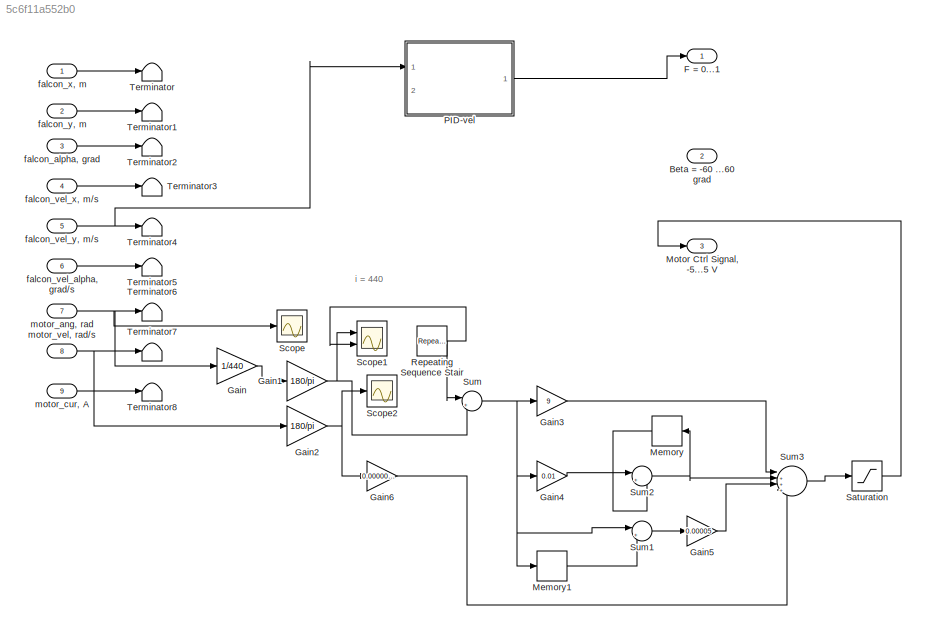
MODEL slx_5c6f11a552b0
KIND model
CONFIG AbsTol = auto
CONFIG EnableMultiTasking = on
CONFIG FixedStep = auto
CONFIG MaxStep = auto
CONFIG MinStep = auto
CONFIG RelTol = 1e-3
CONFIG SampleTimeConstraint = Unconstrained
CONFIG Solver = VariableStepAuto
CONFIG SolverName = VariableStepAuto
CONFIG StartTime = 0.0
CONFIG StopTime = 100
BLOCK [Outport] Beta = -60 ...60 grad
  OutDataTypeStr = double
  Port = 2
  PortDimensions = 1
  SamplingMode = Sample based
  SignalType = real
  VectorParamsAs1DForOutWhenUnconnected = off
BLOCK [Outport] F = 0...1
  OutDataTypeStr = double
  PortDimensions = 1
  SampleTime = [0,1]
  SamplingMode = Sample based
  SignalType = real
  VectorParamsAs1DForOutWhenUnconnected = off
BLOCK [Gain] Gain
  Gain = 1/440
BLOCK [Gain] Gain1
  Gain = 180/pi
BLOCK [Gain] Gain2
  Gain = 180/pi
BLOCK [Gain] Gain3
  Gain = 9
BLOCK [Gain] Gain4
  Gain = 0.01
BLOCK [Gain] Gain5
  Gain = 0.00005
BLOCK [Gain] Gain6
  Gain = 0.0000001
BLOCK [Memory] Memory
BLOCK [Memory] Memory1
BLOCK [Outport] Motor Ctrl Signal, -5...5 V
  OutDataTypeStr = double
  Port = 3
  PortDimensions = 1
  SampleTime = [0,1]
  SamplingMode = Sample based
  SignalType = real
  VectorParamsAs1DForOutWhenUnconnected = off
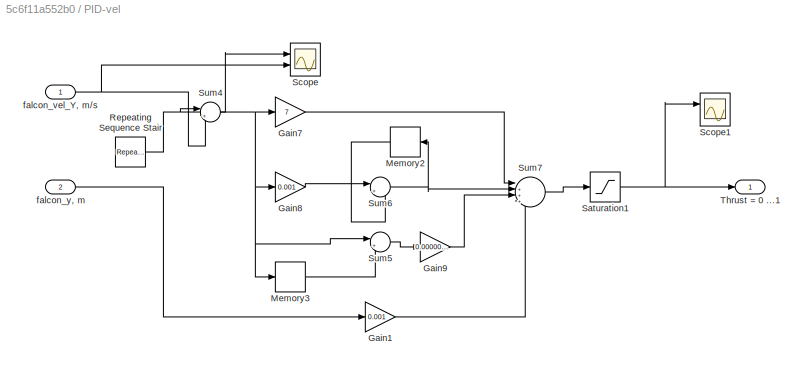
BLOCK [SubSystem] PID-vel
  Ports = [2, 1]
  RequestExecContextInheritance = off
BLOCK [Gain] PID-vel/Gain1
  Gain = 0.001
BLOCK [Gain] PID-vel/Gain7
  Gain = 7
BLOCK [Gain] PID-vel/Gain8
  Gain = 0.001
BLOCK [Gain] PID-vel/Gain9
  Gain = 0.0000005
BLOCK [Memory] PID-vel/Memory2
BLOCK [Memory] PID-vel/Memory3
BLOCK [Reference] PID-vel/Repeating Sequence Stair  REF=simulink/Sources/Repeating
Sequence
Stair
  Ports = [0, 1]
  SourceBlock = simulink/Sources/Repeating\nSequence\nStair
  SourceProductBaseCode = SL
  SourceType = Repeating Sequence Stair
BLOCK [Saturate] PID-vel/Saturation1
  LowerLimit = 0
  UpperLimit = 1
BLOCK [Scope] PID-vel/Scope
  Floating = off
  NumInputPorts = 2
  Ports = [2]
  ScopeSpecificationString = Simulink.scopes.TimeScopeBlockCfg('CurrentConfiguration', extmgr.ConfigurationSet(extmgr.Configuration('Core','General UI',true),extmgr.Configuration('Core','Source UI',true),extmgr.Configuration('Sources','WiredSimulink',true,'DataLoggingVariableName','ScopeData2'),extmgr.Configuration('Visuals','Time Domain',true,'SerializedDisplays',{struct('MinYLimReal','-23.73659','MaxYLimReal','2.6374','YLab...<+1460ch>
BLOCK [Scope] PID-vel/Scope1
  Floating = off
  NumInputPorts = 2
  Ports = [2]
  ScopeSpecificationString = Simulink.scopes.TimeScopeBlockCfg('CurrentConfiguration', extmgr.ConfigurationSet(extmgr.Configuration('Core','General UI',true),extmgr.Configuration('Core','Source UI',true),extmgr.Configuration('Sources','WiredSimulink',true,'DataLoggingVariableName','ScopeData3'),extmgr.Configuration('Visuals','Time Domain',true,'SerializedDisplays',{struct('MinYLimReal','-0.125','MaxYLimReal','1.125','YLabelRe...<+1399ch>
BLOCK [Sum] PID-vel/Sum4
  Inputs = |+-
  Ports = [2, 1]
BLOCK [Sum] PID-vel/Sum5
  Inputs = |+-
  Ports = [2, 1]
BLOCK [Sum] PID-vel/Sum6
  Inputs = |++
  NameLocation = top
  Ports = [2, 1]
BLOCK [Sum] PID-vel/Sum7
  Inputs = |+++-
  NameLocation = top
  Ports = [4, 1]
BLOCK [Outport] PID-vel/Thrust = 0 ...1
BLOCK [Inport] PID-vel/falcon_vel_Y, m//s
BLOCK [Inport] PID-vel/falcon_y, m
  Port = 2
BLOCK [Reference] Repeating Sequence Stair  REF=simulink/Sources/Repeating
Sequence
Stair
  Ports = [0, 1]
  SourceBlock = simulink/Sources/Repeating\nSequence\nStair
  SourceProductBaseCode = SL
  SourceType = Repeating Sequence Stair
BLOCK [Saturate] Saturation
  LowerLimit = -5
  UpperLimit = 5
BLOCK [Scope] Scope
  Floating = off
  NumInputPorts = 1
  Ports = [1]
  ScopeSpecificationString = Simulink.scopes.TimeScopeBlockCfg('CurrentConfiguration', extmgr.ConfigurationSet(extmgr.Configuration('Core','General UI',true),extmgr.Configuration('Core','Source UI',true),extmgr.Configuration('Sources','WiredSimulink',true,'DataLoggingVariableName','ScopeData1'),extmgr.Configuration('Visuals','Time Domain',true,'SerializedDisplays',{struct('MinYLimReal','-172.7876','MaxYLimReal','1555.08844','...<+1463ch>
BLOCK [Scope] Scope1
  Floating = off
  NumInputPorts = 2
  Ports = [2]
  ScopeSpecificationString = Simulink.scopes.TimeScopeBlockCfg('CurrentConfiguration', extmgr.ConfigurationSet(extmgr.Configuration('Core','General UI',true),extmgr.Configuration('Core','Source UI',true),extmgr.Configuration('Sources','WiredSimulink',true,'DataLoggingVariableName','ScopeData4'),extmgr.Configuration('Visuals','Time Domain',true,'SerializedDisplays',{struct('MinYLimReal','0','MaxYLimReal','500','YLabelReal','',...<+1451ch>
BLOCK [Scope] Scope2
  Floating = off
  NumInputPorts = 1
  Ports = [1]
  ScopeSpecificationString = Simulink.scopes.TimeScopeBlockCfg('CurrentConfiguration', extmgr.ConfigurationSet(extmgr.Configuration('Core','General UI',true),extmgr.Configuration('Core','Source UI',true),extmgr.Configuration('Sources','WiredSimulink',true),extmgr.Configuration('Visuals','Time Domain',true,'SerializedDisplays',{struct('MinYLimReal','-1200','MaxYLimReal','10000','YLabelReal','','MinYLimMag',' 0.00000','MaxYLimM...<+1396ch>
BLOCK [Sum] Sum
  Inputs = |+-
  Ports = [2, 1]
BLOCK [Sum] Sum1
  Inputs = |+-
  Ports = [2, 1]
BLOCK [Sum] Sum2
  Inputs = |++
  NameLocation = top
  Ports = [2, 1]
BLOCK [Sum] Sum3
  Inputs = |+++-
  NameLocation = top
  Ports = [4, 1]
BLOCK [Terminator] Terminator
BLOCK [Terminator] Terminator1
BLOCK [Terminator] Terminator2
BLOCK [Terminator] Terminator3
BLOCK [Terminator] Terminator4
BLOCK [Terminator] Terminator5
BLOCK [Terminator] Terminator6
BLOCK [Terminator] Terminator7
BLOCK [Terminator] Terminator8
BLOCK [Inport] falcon_alpha, grad
  OutDataTypeStr = double
  Port = 3
  PortDimensions = 1
  SampleTime = [0.01,0]
  SamplingMode = Sample based
  SignalType = real
BLOCK [Inport] falcon_vel_alpha, grad//s
  OutDataTypeStr = double
  Port = 6
  PortDimensions = 1
  SampleTime = [0.01,0]
  SamplingMode = Sample based
  SignalType = real
BLOCK [Inport] falcon_vel_x, m//s
  OutDataTypeStr = double
  Port = 4
  PortDimensions = 1
  SampleTime = [0.01,0]
  SamplingMode = Sample based
  SignalType = real
BLOCK [Inport] falcon_vel_y, m//s
  OutDataTypeStr = double
  Port = 5
  PortDimensions = 1
  SampleTime = [0.01,0]
  SamplingMode = Sample based
  SignalType = real
BLOCK [Inport] falcon_x, m
  OutDataTypeStr = double
  PortDimensions = 1
  SampleTime = [0.01,0]
  SamplingMode = Sample based
  SignalType = real
BLOCK [Inport] falcon_y, m
  OutDataTypeStr = double
  Port = 2
  PortDimensions = 1
  SampleTime = [0.01,0]
  SamplingMode = Sample based
  SignalType = real
BLOCK [Inport] motor_ang, rad
  OutDataTypeStr = double
  Port = 7
  PortDimensions = 1
  SampleTime = [0.01,0]
  SamplingMode = Sample based
  SignalType = real
BLOCK [Inport] motor_cur, A
  OutDataTypeStr = double
  Port = 9
  PortDimensions = 1
  SampleTime = [0.01,0]
  SamplingMode = Sample based
  SignalType = real
BLOCK [Inport] motor_vel, rad//s
  OutDataTypeStr = double
  Port = 8
  PortDimensions = 1
  SampleTime = [0.01,0]
  SamplingMode = Sample based
  SignalType = real
ANNOTATION (root): i = 440
NET Gain1:1 -> Scope1:1, Sum:2
NET Gain2:1 -> Gain6:1, Scope2:1
LINE Gain3:1 -> Sum3:1
LINE Gain4:1 -> Sum2:1
LINE Gain5:1 -> Sum3:3
LINE Gain6:1 -> Sum3:4
LINE Gain:1 -> Gain1:1
LINE Memory1:1 -> Sum1:2
LINE Memory:1 -> Sum2:2
LINE PID-vel/Gain1:1 -> PID-vel/Sum7:4
LINE PID-vel/Gain7:1 -> PID-vel/Sum7:1
LINE PID-vel/Gain8:1 -> PID-vel/Sum6:1
LINE PID-vel/Gain9:1 -> PID-vel/Sum7:3
LINE PID-vel/Memory2:1 -> PID-vel/Sum6:2
LINE PID-vel/Memory3:1 -> PID-vel/Sum5:2
NET PID-vel/Repeating Sequence Stair:1 -> PID-vel/Scope:1, PID-vel/Sum4:1
NET PID-vel/Saturation1:1 -> PID-vel/Scope1:1, PID-vel/Thrust = 0 ...1:1
NET PID-vel/Sum4:1 -> PID-vel/Gain7:1, PID-vel/Gain8:1, PID-vel/Memory3:1, PID-vel/Sum5:1
LINE PID-vel/Sum5:1 -> PID-vel/Gain9:1
NET PID-vel/Sum6:1 -> PID-vel/Memory2:1, PID-vel/Sum7:2
LINE PID-vel/Sum7:1 -> PID-vel/Saturation1:1
NET PID-vel/falcon_vel_Y, m//s:1 -> PID-vel/Scope:2, PID-vel/Sum4:2
LINE PID-vel/falcon_y, m:1 -> PID-vel/Gain1:1
LINE PID-vel:1 -> F = 0...1:1
NET Repeating Sequence Stair:1 -> Scope1:2, Sum:1
LINE Saturation:1 -> Motor Ctrl Signal, -5...5 V:1
LINE Sum1:1 -> Gain5:1
NET Sum2:1 -> Memory:1, Sum3:2
LINE Sum3:1 -> Saturation:1
NET Sum:1 -> Gain3:1, Gain4:1, Memory1:1, Sum1:1
LINE falcon_alpha, grad:1 -> Terminator2:1
LINE falcon_vel_alpha, grad//s:1 -> Terminator5:1
LINE falcon_vel_x, m//s:1 -> Terminator3:1
NET falcon_vel_y, m//s:1 -> PID-vel:1, Terminator4:1
LINE falcon_x, m:1 -> Terminator:1
LINE falcon_y, m:1 -> Terminator1:1
NET motor_ang, rad:1 -> Gain:1, Scope:1, Terminator6:1
LINE motor_cur, A:1 -> Terminator8:1
NET motor_vel, rad//s:1 -> Gain2:1, Terminator7:1
note: NET lines group one-source signal fan-out (src -> all destinations, sorted); 1:1 wires keep LINE
